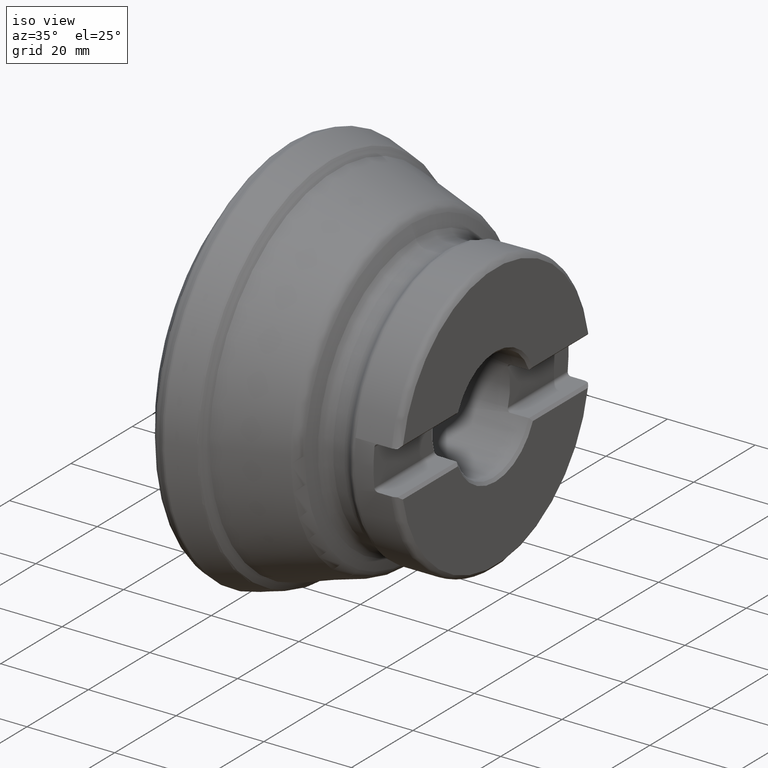
[diagram: clean part render]
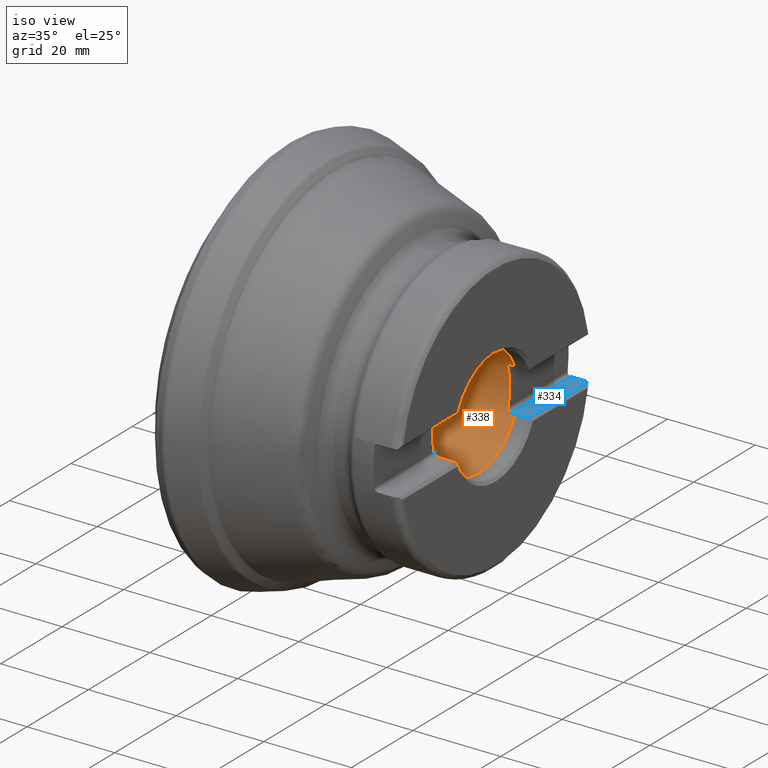
[diagram: same view with the hole feature highlighted: cylindrical wall and planar end face, labeled with their STEP entity ids]
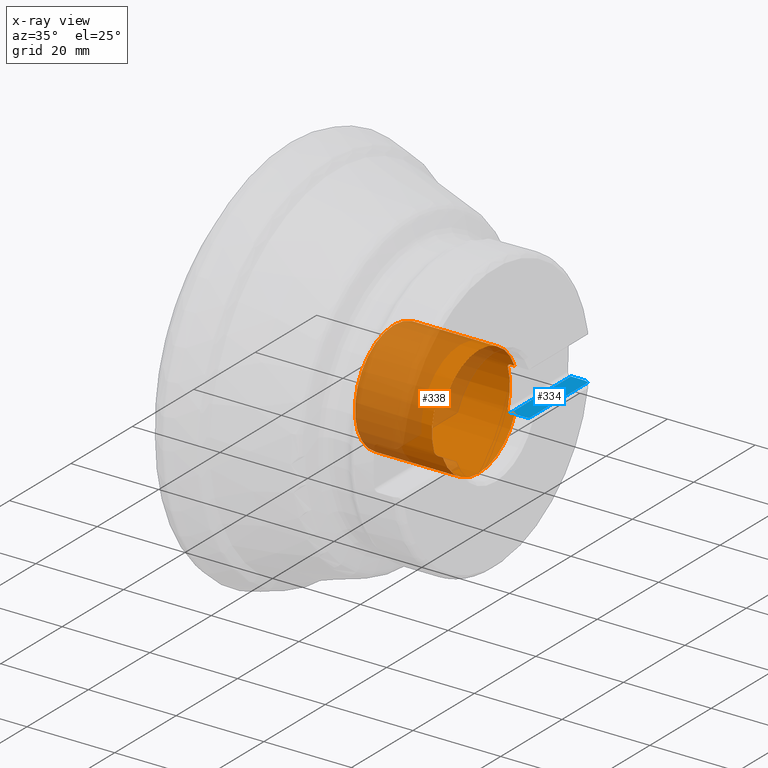
[diagram: x-ray of the same camera — body ghosted, the hole faces saturated]
A machine part, iso view. The highlighted faces form one hole feature of diameter 25.4 mm: the cylindrical wall (entity #338, orange) and its adjacent planar end face (entity #334, blue) — they share a circular edge in the B-rep.
The next image is the same camera in x-ray (body ghosted, the hole faces saturated) — the bore reads through the body.
Wall:
#182=CYLINDRICAL_SURFACE('',#1080,12.7);
#202=LINE('',#1703,#226);
#204=LINE('',#1715,#228);
#206=LINE('',#1727,#230);
#208=LINE('',#1739,#232);
#226=VECTOR('',#1234,1.);
#228=VECTOR('',#1238,1.);
#230=VECTOR('',#1242,1.);
#232=VECTOR('',#1246,1.);
#247=FACE_BOUND('',#444,.T.);
#248=FACE_BOUND('',#445,.T.);
#338=ADVANCED_FACE('',(#247,#248),#182,.F.);
#444=EDGE_LOOP('',(#662));
#445=EDGE_LOOP('',(#663,#664,#665,#666,#667,#668,#669,#670,#671,#672,#673,
#674));
#536=B_SPLINE_CURVE_WITH_KNOTS('',3,(#1619,#1620,#1621,#1622,#1623,#1624,
#1625,#1626,#1627,#1628,#1629,#1630,#1631,#1632,#1633,#1634),
 .UNSPECIFIED.,.F.,.F.,(4,3,3,3,3,4),(0.,0.18794956605145,0.405805927698821,
0.608459015387887,0.803993626920794,1.),.UNSPECIFIED.);
#537=B_SPLINE_CURVE_WITH_KNOTS('',3,(#1636,#1637,#1638,#1639,#1640,#1641,
#1642,#1643,#1644,#1645,#1646,#1647,#1648,#1649,#1650,#1651),
 .UNSPECIFIED.,.F.,.F.,(4,3,3,3,3,4),(0.,0.0919914640590894,0.305535971616086,
0.534267466351811,0.767237662896965,1.),.UNSPECIFIED.);
#538=B_SPLINE_CURVE_WITH_KNOTS('',3,(#1655,#1656,#1657,#1658,#1659,#1660,
#1661,#1662,#1663,#1664,#1665,#1666,#1667,#1668,#1669,#1670),
 .UNSPECIFIED.,.F.,.F.,(4,3,3,3,3,4),(0.,0.0919914640590943,0.30553597161609,
0.534267466351813,0.767237662896966,1.),.UNSPECIFIED.);
#539=B_SPLINE_CURVE_WITH_KNOTS('',3,(#1676,#1677,#1678,#1679,#1680,#1681,
#1682,#1683,#1684,#1685,#1686,#1687,#1688,#1689,#1690,#1691),
 .UNSPECIFIED.,.F.,.F.,(4,3,3,3,3,4),(0.,0.187949566051454,0.405805927698825,
0.60845901538789,0.803993626920795,1.),.UNSPECIFIED.);
#662=ORIENTED_EDGE('',*,*,#935,.F.);
#663=ORIENTED_EDGE('',*,*,#934,.F.);
#664=ORIENTED_EDGE('',*,*,#936,.F.);
#665=ORIENTED_EDGE('',*,*,#931,.F.);
#666=ORIENTED_EDGE('',*,*,#917,.T.);
#667=ORIENTED_EDGE('',*,*,#910,.F.);
#668=ORIENTED_EDGE('',*,*,#916,.T.);
#669=ORIENTED_EDGE('',*,*,#928,.F.);
#670=ORIENTED_EDGE('',*,*,#937,.F.);
#671=ORIENTED_EDGE('',*,*,#925,.F.);
#672=ORIENTED_EDGE('',*,*,#919,.T.);
#673=ORIENTED_EDGE('',*,*,#913,.F.);
#674=ORIENTED_EDGE('',*,*,#922,.T.);
#819=VERTEX_POINT('',#1606);
#820=VERTEX_POINT('',#1608);
#821=VERTEX_POINT('',#1612);
#822=VERTEX_POINT('',#1614);
#823=VERTEX_POINT('',#1618);
#824=VERTEX_POINT('',#1652);
#825=VERTEX_POINT('',#1671);
#826=VERTEX_POINT('',#1675);
#827=VERTEX_POINT('',#1700);
#830=VERTEX_POINT('',#1714);
#831=VERTEX_POINT('',#1724);
#834=VERTEX_POINT('',#1738);
#835=VERTEX_POINT('',#1742);
#910=EDGE_CURVE('',#819,#820,#997,.T.);
#913=EDGE_CURVE('',#821,#822,#998,.T.);
#916=EDGE_CURVE('',#819,#823,#536,.T.);
#917=EDGE_CURVE('',#824,#820,#537,.T.);
#919=EDGE_CURVE('',#825,#822,#538,.T.);
#922=EDGE_CURVE('',#821,#826,#539,.T.);
#925=EDGE_CURVE('',#825,#827,#202,.T.);
#928=EDGE_CURVE('',#830,#823,#204,.T.);
#931=EDGE_CURVE('',#824,#831,#206,.T.);
#934=EDGE_CURVE('',#834,#826,#208,.T.);
#935=EDGE_CURVE('',#835,#835,#999,.T.);
#936=EDGE_CURVE('',#831,#834,#1000,.T.);
#937=EDGE_CURVE('',#827,#830,#1001,.T.);
#997=CIRCLE('',#1065,12.7);
#998=CIRCLE('',#1067,12.7);
#999=CIRCLE('',#1077,12.7);
#1000=CIRCLE('',#1078,12.7);
#1001=CIRCLE('',#1079,12.7);
#1065=AXIS2_PLACEMENT_3D('',#1607,#1210,#1211);
#1067=AXIS2_PLACEMENT_3D('',#1613,#1216,#1217);
#1077=AXIS2_PLACEMENT_3D('',#1741,#1249,#1250);
#1078=AXIS2_PLACEMENT_3D('',#1743,#1251,#1252);
#1079=AXIS2_PLACEMENT_3D('',#1744,#1253,#1254);
#1080=AXIS2_PLACEMENT_3D('',#1745,#1255,#1256);
#1210=DIRECTION('',(-1.,-1.4432899320127E-15,6.66952178715043E-31));
#1211=DIRECTION('',(0.,0.,1.));
#1216=DIRECTION('',(-1.,-1.4432899320127E-15,6.66952178715043E-31));
#1217=DIRECTION('',(0.,0.,1.));
#1234=DIRECTION('',(1.,1.4432899320127E-15,-6.66952178715043E-31));
#1238=DIRECTION('',(-1.,-1.4432899320127E-15,6.66952178715043E-31));
#1242=DIRECTION('',(1.,1.4432899320127E-15,-6.66952178715043E-31));
#1246=DIRECTION('',(-1.,-1.4432899320127E-15,6.66952178715043E-31));
#1249=DIRECTION('',(1.,1.4432899320127E-15,-6.66952178715043E-31));
#1250=DIRECTION('',(0.,0.,1.));
#1251=DIRECTION('',(-1.,-1.4432899320127E-15,6.66952178715043E-31));
#1252=DIRECTION('',(0.,0.,1.));
#1253=DIRECTION('',(-1.,-1.4432899320127E-15,6.66952178715043E-31));
#1254=DIRECTION('',(0.,0.,1.));
#1255=DIRECTION('',(1.,1.4432899320127E-15,-6.66952178715043E-31));
#1256=DIRECTION('',(0.,0.,1.));
#1606=CARTESIAN_POINT('',(45.24,-11.9976153880677,-4.16499999999999));
#1607=CARTESIAN_POINT('',(45.24,6.52944365242547E-14,-3.01729165650685E-29));
#1608=CARTESIAN_POINT('',(45.24,-11.9976153880677,4.165));
#1612=CARTESIAN_POINT('',(45.24,11.9976153880678,4.165));
#1613=CARTESIAN_POINT('',(45.24,6.52944365242547E-14,-3.01729165650685E-29));
#1614=CARTESIAN_POINT('',(45.24,11.9976153880678,-4.16499999999999));
#1618=CARTESIAN_POINT('',(46.04,-11.6892589585482,-4.96499999999999));
#1619=CARTESIAN_POINT('',(45.24,-11.9976153880677,-4.16499999999999));
#1620=CARTESIAN_POINT('',(45.24,-11.9709296500293,-4.24187040127988));
#1621=CARTESIAN_POINT('',(45.2512554639037,-11.9432374526266,-4.31916929808132));
#1622=CARTESIAN_POINT('',(45.273093776447,-11.9161252503018,-4.39271658761629));
#1623=CARTESIAN_POINT('',(45.2983221839082,-11.8848042548692,-4.4776810730535));
#1624=CARTESIAN_POINT('',(45.338348905998,-11.8535280004185,-4.55960218043715));
#1625=CARTESIAN_POINT('',(45.3906780616263,-11.8250446269603,-4.63231255102619));
#1626=CARTESIAN_POINT('',(45.4393988654275,-11.7985253217434,-4.70000918509657));
#1627=CARTESIAN_POINT('',(45.4999720685128,-11.7738131527377,-4.76132932683092));
#1628=CARTESIAN_POINT('',(45.5687231442601,-11.7532950701826,-4.81145040431876));
#1629=CARTESIAN_POINT('',(45.6350379878333,-11.7335040571654,-4.85979541386516));
#1630=CARTESIAN_POINT('',(45.7106358420451,-11.7171731226467,-4.89884254644604));
#1631=CARTESIAN_POINT('',(45.7901487446211,-11.7061753454793,-4.92498312493475));
#1632=CARTESIAN_POINT('',(45.8697693782281,-11.6951626675619,-4.95115912096423));
#1633=CARTESIAN_POINT('',(45.9554665324323,-11.6892589585482,-4.96499999999999));
#1634=CARTESIAN_POINT('',(46.04,-11.6892589585482,-4.96499999999999));
#1636=CARTESIAN_POINT('',(46.04,-11.6892589585482,4.965));
#1637=CARTESIAN_POINT('',(45.9998060238737,-11.6892589585482,4.965));
#1638=CARTESIAN_POINT('',(45.9594795672361,-11.690556819486,4.96194760993455));
#1639=CARTESIAN_POINT('',(45.9198220036656,-11.6931107662262,4.95592177185676));
#1640=CARTESIAN_POINT('',(45.8290192286836,-11.6989584641249,4.94212458489435));
#1641=CARTESIAN_POINT('',(45.7397399894335,-11.7117243802509,4.91199201726471));
#1642=CARTESIAN_POINT('',(45.6602656838675,-11.729516346995,4.86913198276412));
#1643=CARTESIAN_POINT('',(45.5751867772956,-11.7485630195712,4.82324941927434));
#1644=CARTESIAN_POINT('',(45.4984896030577,-11.7739161219179,4.76138290617582));
#1645=CARTESIAN_POINT('',(45.4365349379549,-11.8022061367056,4.69019512458792));
#1646=CARTESIAN_POINT('',(45.3733769207823,-11.8310456314685,4.61762465512362));
#1647=CARTESIAN_POINT('',(45.3234606160419,-11.8637793603147,4.53318108009502));
#1648=CARTESIAN_POINT('',(45.2903591135365,-11.8969626110095,4.44435379242489));
#1649=CARTESIAN_POINT('',(45.2572719360387,-11.9301315013192,4.35556494565564));
#1650=CARTESIAN_POINT('',(45.24,-11.9646918126674,4.25983899036066));
#1651=CARTESIAN_POINT('',(45.24,-11.9976153880677,4.165));
#1652=CARTESIAN_POINT('',(46.04,-11.6892589585482,4.965));
#1655=CARTESIAN_POINT('',(46.04,11.6892589585483,-4.96499999999999));
#1656=CARTESIAN_POINT('',(45.9998060238737,11.6892589585483,-4.96499999999999));
#1657=CARTESIAN_POINT('',(45.9594795672361,11.6905568194862,-4.96194760993455));
#1658=CARTESIAN_POINT('',(45.9198220036655,11.6931107662263,-4.95592177185675));
#1659=CARTESIAN_POINT('',(45.8290192286835,11.6989584641251,-4.94212458489435));
#1660=CARTESIAN_POINT('',(45.7397399894335,11.7117243802511,-4.91199201726471));
#1661=CARTESIAN_POINT('',(45.6602656838674,11.7295163469951,-4.86913198276411));
#1662=CARTESIAN_POINT('',(45.5751867772956,11.7485630195714,-4.82324941927433));
#1663=CARTESIAN_POINT('',(45.4984896030576,11.7739161219181,-4.76138290617581));
#1664=CARTESIAN_POINT('',(45.4365349379549,11.8022061367057,-4.69019512458792));
#1665=CARTESIAN_POINT('',(45.3733769207823,11.8310456314686,-4.61762465512362));
#1666=CARTESIAN_POINT('',(45.3234606160419,11.8637793603148,-4.53318108009501));
#1667=CARTESIAN_POINT('',(45.2903591135365,11.8969626110096,-4.44435379242488));
#1668=CARTESIAN_POINT('',(45.2572719360387,11.9301315013194,-4.35556494565563));
#1669=CARTESIAN_POINT('',(45.24,11.9646918126676,-4.25983899036065));
#1670=CARTESIAN_POINT('',(45.24,11.9976153880678,-4.16499999999999));
#1671=CARTESIAN_POINT('',(46.04,11.6892589585483,-4.96499999999999));
#1675=CARTESIAN_POINT('',(46.04,11.6892589585483,4.965));
#1676=CARTESIAN_POINT('',(45.24,11.9976153880678,4.165));
#1677=CARTESIAN_POINT('',(45.24,11.9709296500295,4.24187040127989));
#1678=CARTESIAN_POINT('',(45.2512554639037,11.9432374526267,4.31916929808133));
#1679=CARTESIAN_POINT('',(45.2730937764469,11.9161252503019,4.39271658761631));
#1680=CARTESIAN_POINT('',(45.2983221839082,11.8848042548693,4.47768107305351));
#1681=CARTESIAN_POINT('',(45.338348905998,11.8535280004186,4.55960218043716));
#1682=CARTESIAN_POINT('',(45.3906780616263,11.8250446269605,4.6323125510262));
#1683=CARTESIAN_POINT('',(45.4393988654275,11.7985253217435,4.70000918509658));
#1684=CARTESIAN_POINT('',(45.4999720685128,11.7738131527378,4.76132932683094));
#1685=CARTESIAN_POINT('',(45.5687231442601,11.7532950701828,4.81145040431877));
#1686=CARTESIAN_POINT('',(45.6350379878333,11.7335040571656,4.85979541386517));
#1687=CARTESIAN_POINT('',(45.710635842045,11.7171731226469,4.89884254644605));
#1688=CARTESIAN_POINT('',(45.7901487446211,11.7061753454794,4.92498312493476));
#1689=CARTESIAN_POINT('',(45.8697693782281,11.6951626675621,4.95115912096424));
#1690=CARTESIAN_POINT('',(45.9554665324323,11.6892589585483,4.965));
#1691=CARTESIAN_POINT('',(46.04,11.6892589585483,4.965));
#1700=CARTESIAN_POINT('',(47.,11.6892589585483,-4.96499999999999));
#1703=CARTESIAN_POINT('',(47.,11.6892589585483,-4.96499999999999));
#1714=CARTESIAN_POINT('',(47.,-11.6892589585482,-4.96499999999999));
#1715=CARTESIAN_POINT('',(51.,-11.6892589585482,-4.96499999999999));
#1724=CARTESIAN_POINT('',(47.,-11.6892589585482,4.965));
#1727=CARTESIAN_POINT('',(51.,-11.6892589585482,4.965));
#1738=CARTESIAN_POINT('',(47.,11.6892589585483,4.965));
#1739=CARTESIAN_POINT('',(45.24,11.6892589585483,4.965));
#1741=CARTESIAN_POINT('',(27.6554,3.99147603857841E-14,-1.8444829283236E-29));
#1742=CARTESIAN_POINT('',(27.6554,3.99147603857841E-14,12.7));
#1743=CARTESIAN_POINT('',(47.,6.78346268045971E-14,-3.1346752399607E-29));
#1744=CARTESIAN_POINT('',(47.,6.78346268045971E-14,-3.1346752399607E-29));
#1745=CARTESIAN_POINT('',(51.,7.36077865326479E-14,-3.40145611144672E-29));
End face:
#162=PLANE('',#1073);
#188=LINE('',#1567,#212);
#199=LINE('',#1672,#223);
#201=LINE('',#1702,#225);
#202=LINE('',#1703,#226);
#212=VECTOR('',#1164,1.);
#223=VECTOR('',#1227,1.);
#225=VECTOR('',#1233,1.);
#226=VECTOR('',#1234,1.);
#334=ADVANCED_FACE('',(#402),#162,.T.);
#402=FACE_OUTER_BOUND('',#440,.T.);
#440=EDGE_LOOP('',(#638,#639,#640,#641,#642,#643));
#526=B_SPLINE_CURVE_WITH_KNOTS('',3,(#1423,#1424,#1425,#1426,#1427,#1428,
#1429,#1430,#1431,#1432),.UNSPECIFIED.,.F.,.F.,(4,3,3,4),(0.,0.340572865222428,
0.85772278915443,1.),.UNSPECIFIED.);
#540=B_SPLINE_CURVE_WITH_KNOTS('',3,(#1693,#1694,#1695,#1696,#1697,#1698,
#1699),.UNSPECIFIED.,.F.,.F.,(4,3,4),(0.,0.605448039812414,1.),
 .UNSPECIFIED.);
#638=ORIENTED_EDGE('',*,*,#923,.T.);
#639=ORIENTED_EDGE('',*,*,#924,.T.);
#640=ORIENTED_EDGE('',*,*,#875,.F.);
#641=ORIENTED_EDGE('',*,*,#893,.T.);
#642=ORIENTED_EDGE('',*,*,#920,.T.);
#643=ORIENTED_EDGE('',*,*,#925,.T.);
#789=VERTEX_POINT('',#1422);
#790=VERTEX_POINT('',#1433);
#805=VERTEX_POINT('',#1566);
#825=VERTEX_POINT('',#1671);
#827=VERTEX_POINT('',#1700);
#828=VERTEX_POINT('',#1701);
#875=EDGE_CURVE('',#789,#790,#526,.T.);
#893=EDGE_CURVE('',#789,#805,#188,.T.);
#920=EDGE_CURVE('',#805,#825,#199,.T.);
#923=EDGE_CURVE('',#827,#828,#540,.T.);
#924=EDGE_CURVE('',#828,#790,#201,.T.);
#925=EDGE_CURVE('',#825,#827,#202,.T.);
#1073=AXIS2_PLACEMENT_3D('',#1704,#1235,#1236);
#1164=DIRECTION('',(-1.,0.,0.));
#1227=DIRECTION('',(1.4432899320127E-15,-1.,-4.37905770101505E-47));
#1233=DIRECTION('',(0.,1.,3.38212701279084E-31));
#1234=DIRECTION('',(1.,1.4432899320127E-15,-6.66952178715043E-31));
#1235=DIRECTION('',(-2.34334553146531E-16,-3.38212701279084E-31,1.));
#1236=DIRECTION('',(-1.,-1.4432899320127E-15,-2.34187669256869E-16));
#1422=CARTESIAN_POINT('',(48.9999999999999,31.3593889449396,-4.96499999999999));
#1423=CARTESIAN_POINT('',(48.9999999999999,31.3593889449396,-4.96499999999999));
#1424=CARTESIAN_POINT('',(49.1458690457507,31.3593889449396,-4.96499999999999));
#1425=CARTESIAN_POINT('',(49.2926221390336,31.3430288859622,-4.96499999999999));
#1426=CARTESIAN_POINT('',(49.4349159214673,31.3109312538229,-4.96499999999999));
#1427=CARTESIAN_POINT('',(49.6506572760219,31.2622658341728,-4.96499999999999));
#1428=CARTESIAN_POINT('',(49.8609284867448,31.1757405078574,-4.96499999999999));
#1429=CARTESIAN_POINT('',(50.0485975712118,31.0587235438305,-4.96499999999999));
#1430=CARTESIAN_POINT('',(50.1006135068588,31.0262901417722,-4.96499999999999));
#1431=CARTESIAN_POINT('',(50.151186229321,30.9914200604819,-4.96499999999999));
#1432=CARTESIAN_POINT('',(50.1999999999968,30.954341779471,-4.96499999999999));
#1433=CARTESIAN_POINT('',(50.1999999999968,30.954341779471,-4.96499999999999));
#1566=CARTESIAN_POINT('',(46.04,31.3593889449396,-4.96499999999999));
#1567=CARTESIAN_POINT('',(6.,31.3593889449396,-4.965));
#1671=CARTESIAN_POINT('',(46.04,11.6892589585483,-4.96499999999999));
#1672=CARTESIAN_POINT('',(46.0399999999999,48.0000000000001,-4.96499999999999));
#1693=CARTESIAN_POINT('',(47.,11.6892589585483,-4.96499999999999));
#1694=CARTESIAN_POINT('',(47.6458109340812,11.7076323783271,-4.96499999999999));
#1695=CARTESIAN_POINT('',(48.2916220564037,11.7259991827384,-4.96499999999999));
#1696=CARTESIAN_POINT('',(48.9374333641315,11.7443594644416,-4.96499999999999));
#1697=CARTESIAN_POINT('',(49.3582888309171,11.7563242981848,-4.96499999999999));
#1698=CARTESIAN_POINT('',(49.7791443764637,11.7682863618735,-4.96499999999999));
#1699=CARTESIAN_POINT('',(50.1999999999999,11.7802456807414,-4.96499999999999));
#1700=CARTESIAN_POINT('',(47.,11.6892589585483,-4.96499999999999));
#1701=CARTESIAN_POINT('',(50.1999999999999,11.7802456807414,-4.96499999999999));
#1702=CARTESIAN_POINT('',(50.1999999999999,48.0000000000001,-4.96499999999999));
#1703=CARTESIAN_POINT('',(47.,11.6892589585483,-4.96499999999999));
#1704=CARTESIAN_POINT('',(60.045528699748,48.0000000000001,-4.96499999999999));